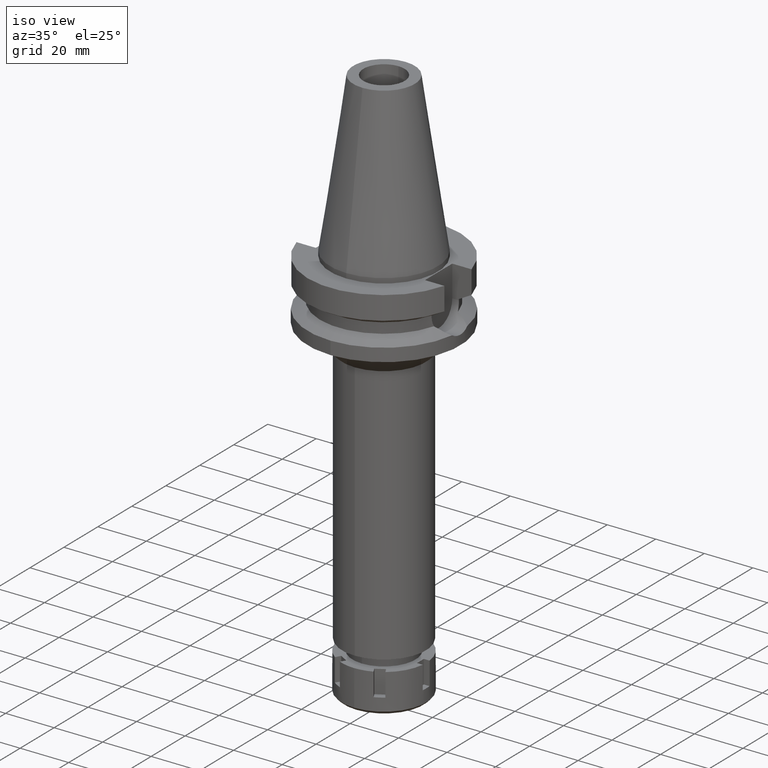
[diagram: clean part render]
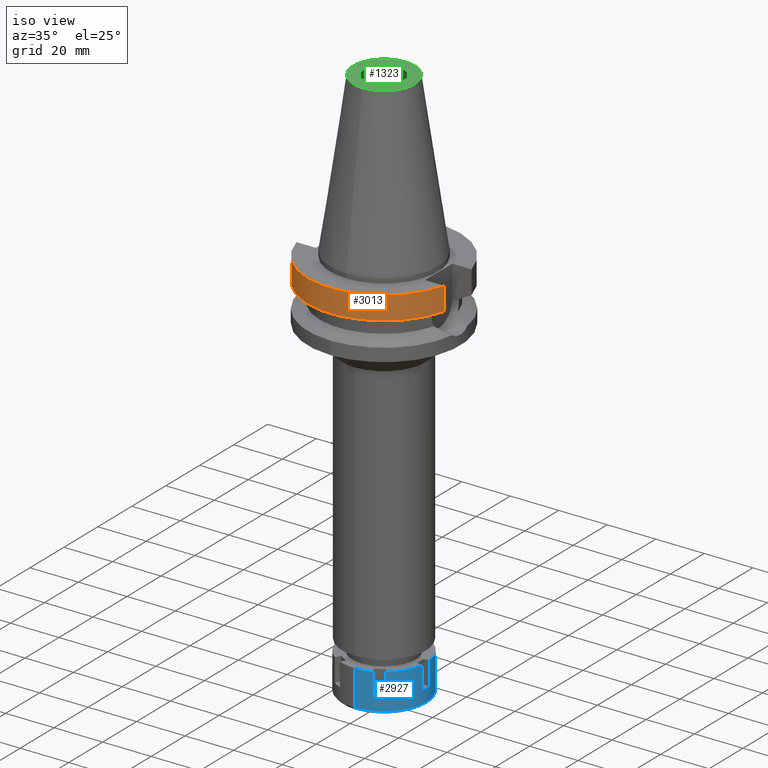
[diagram: same view with three faces highlighted in distinct colors, each labeled with its STEP entity id]
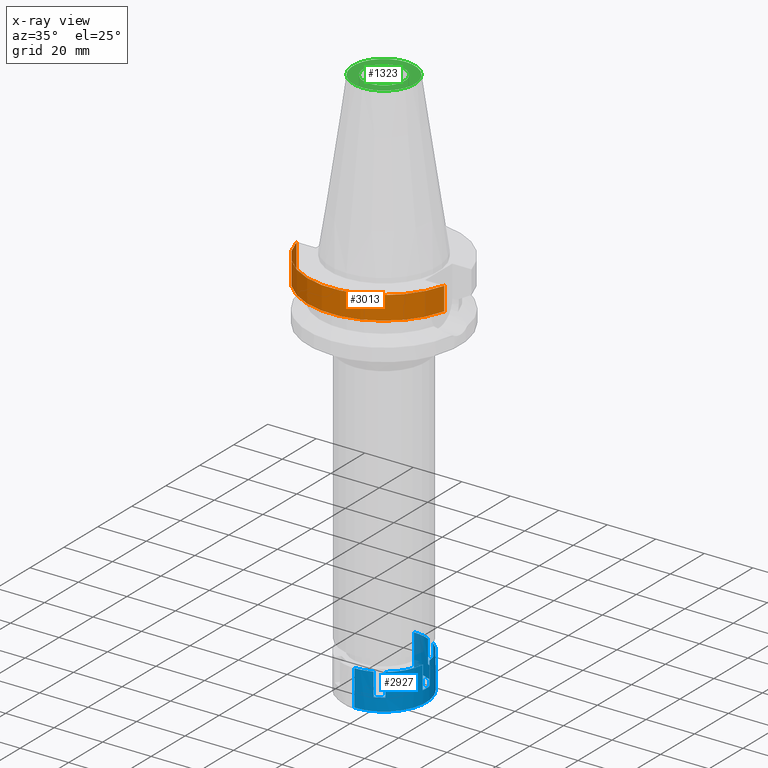
[diagram: x-ray of the same camera — body ghosted, the three highlighted faces saturated]
A machine part, iso view with three faces highlighted in distinct colors.
The next image is the same camera in x-ray (body ghosted, the three faces saturated) — at least one of them is partly hidden behind the body in this view.
Their STEP definitions:

[orange] entity #3013 — the highlighted cylindrical surface (partial cylindrical patch) has radius 31.5 mm, axis along (0, 0, -1).
#108 = DIRECTION ( 'NONE',  ( 0.0000000000000000000, 0.0000000000000000000, 1.000000000000000000 ) ) ;
#350 = CARTESIAN_POINT ( 'NONE',  ( 30.45402272279000044, -8.049999999999000622, -11.56550565266999975 ) ) ;
#458 = AXIS2_PLACEMENT_3D ( 'NONE', #3085, #566, #1695 ) ;
#566 = DIRECTION ( 'NONE',  ( 0.0000000000000000000, 0.0000000000000000000, -1.000000000000000000 ) ) ;
#634 = CIRCLE ( 'NONE', #458, 31.50000000000000000 ) ;
#748 = VERTEX_POINT ( 'NONE', #3248 ) ;
#749 = VECTOR ( 'NONE', #2125, 999.9999999999998863 ) ;
#1086 = CARTESIAN_POINT ( 'NONE',  ( 0.0000000000000000000, 2.161746529854999700E-14, 76.52000000000001023 ) ) ;
#1215 = LINE ( 'NONE', #3198, #749 ) ;
#1233 = DIRECTION ( 'NONE',  ( 0.0000000000000000000, -1.000000000000000000, 0.0000000000000000000 ) ) ;
#1429 = ORIENTED_EDGE ( 'NONE', *, *, #2875, .T. ) ;
#1506 = DIRECTION ( 'NONE',  ( 1.994621289529988906E-08, -7.545894673464957228E-08, 0.9999999999999968914 ) ) ;
#1579 = VERTEX_POINT ( 'NONE', #350 ) ;
#1630 = VERTEX_POINT ( 'NONE', #2096 ) ;
#1695 = DIRECTION ( 'NONE',  ( 0.0000000000000000000, -1.000000000000000000, 0.0000000000000000000 ) ) ;
#1842 = VERTEX_POINT ( 'NONE', #3545 ) ;
#1948 = ORIENTED_EDGE ( 'NONE', *, *, #3632, .F. ) ;
#2011 = AXIS2_PLACEMENT_3D ( 'NONE', #3410, #108, #1233 ) ;
#2054 = EDGE_CURVE ( 'NONE', #1630, #1579, #2821, .T. ) ;
#2096 = CARTESIAN_POINT ( 'NONE',  ( -30.45402291358000113, -8.049999278195999253, -11.56551215380000031 ) ) ;
#2121 = VECTOR ( 'NONE', #1506, 1000.000000000000227 ) ;
#2125 = DIRECTION ( 'NONE',  ( -1.145023312779999569E-07, -4.331741411846998158E-07, -0.9999999999998997469 ) ) ;
#2437 = LINE ( 'NONE', #3521, #2121 ) ;
#2486 = CYLINDRICAL_SURFACE ( 'NONE', #3642, 31.50000000000000000 ) ;
#2497 = ORIENTED_EDGE ( 'NONE', *, *, #2054, .T. ) ;
#2707 = FACE_OUTER_BOUND ( 'NONE', #2856, .T. ) ;
#2821 = CIRCLE ( 'NONE', #2011, 31.50000000000000000 ) ;
#2856 = EDGE_LOOP ( 'NONE', ( #1948, #2497, #3056, #1429 ) ) ;
#2875 = EDGE_CURVE ( 'NONE', #1842, #748, #634, .T. ) ;
#2896 = EDGE_CURVE ( 'NONE', #1842, #1579, #1215, .T. ) ;
#3013 = ADVANCED_FACE ( 'NONE', ( #2707 ), #2486, .T. ) ;
#3056 = ORIENTED_EDGE ( 'NONE', *, *, #2896, .F. ) ;
#3085 = CARTESIAN_POINT ( 'NONE',  ( 0.0000000000000000000, 2.161746529854999700E-14, -2.000000000000000000 ) ) ;
#3198 = CARTESIAN_POINT ( 'NONE',  ( 30.45402272279000044, -8.050000000000000711, -2.000000000000000000 ) ) ;
#3248 = CARTESIAN_POINT ( 'NONE',  ( -30.45402272279000044, -8.050000000000000711, -2.000000000000000000 ) ) ;
#3310 = DIRECTION ( 'NONE',  ( 0.0000000000000000000, 0.0000000000000000000, -1.000000000000000000 ) ) ;
#3410 = CARTESIAN_POINT ( 'NONE',  ( 0.0000000000000000000, 1.065333950388000029E-14, -11.56550565266999975 ) ) ;
#3521 = CARTESIAN_POINT ( 'NONE',  ( -30.45402291358000113, -8.049999278195999253, -11.56551215380000031 ) ) ;
#3545 = CARTESIAN_POINT ( 'NONE',  ( 30.45402272279000044, -8.050000000000000711, -2.000000000000000000 ) ) ;
#3598 = DIRECTION ( 'NONE',  ( 0.0000000000000000000, -1.000000000000000000, 0.0000000000000000000 ) ) ;
#3632 = EDGE_CURVE ( 'NONE', #1630, #748, #2437, .T. ) ;
#3642 = AXIS2_PLACEMENT_3D ( 'NONE', #1086, #3310, #3598 ) ;

[blue] entity #2927 — the highlighted cylindrical surface (partial cylindrical patch) has radius 17.5 mm, axis along (0, 0, -1).
#9 = CARTESIAN_POINT ( 'NONE',  ( 10.42472013293000010, -14.05614492490999901, -9.500000000000000000 ) ) ;
#29 = CIRCLE ( 'NONE', #3080, 17.50000000000000355 ) ;
#40 = CARTESIAN_POINT ( 'NONE',  ( 0.0000000000000000000, 0.0000000000000000000, -14.75000000000000000 ) ) ;
#67 = CARTESIAN_POINT ( 'NONE',  ( 10.42472013293000010, -14.05614492490999901, -9.500000000000000000 ) ) ;
#94 = EDGE_CURVE ( 'NONE', #920, #1374, #1140, .T. ) ;
#126 = CYLINDRICAL_SURFACE ( 'NONE', #3336, 17.50000000000000000 ) ;
#170 = CARTESIAN_POINT ( 'NONE',  ( 10.42472013293000010, 14.05614492490999901, 0.0000000000000000000 ) ) ;
#216 = CARTESIAN_POINT ( 'NONE',  ( 10.42472013293000010, -14.05614492490999901, 0.0000000000000000000 ) ) ;
#224 = VERTEX_POINT ( 'NONE', #2283 ) ;
#272 = VERTEX_POINT ( 'NONE', #333 ) ;
#283 = ORIENTED_EDGE ( 'NONE', *, *, #1015, .T. ) ;
#284 = EDGE_CURVE ( 'NONE', #1347, #1297, #2784, .T. ) ;
#304 = ORIENTED_EDGE ( 'NONE', *, *, #1658, .T. ) ;
#315 = ORIENTED_EDGE ( 'NONE', *, *, #515, .T. ) ;
#330 = EDGE_CURVE ( 'NONE', #1041, #920, #3186, .T. ) ;
#333 = CARTESIAN_POINT ( 'NONE',  ( 17.38533865071000051, 2.000000000000000000, 0.0000000000000000000 ) ) ;
#372 = CARTESIAN_POINT ( 'NONE',  ( 0.0000000000000000000, 0.0000000000000000000, 0.0000000000000000000 ) ) ;
#393 = DIRECTION ( 'NONE',  ( 0.3977496295877935850, -0.9174939957093850573, 0.0000000000000000000 ) ) ;
#439 = DIRECTION ( 'NONE',  ( 0.0000000000000000000, 0.0000000000000000000, -1.000000000000000000 ) ) ;
#492 = ORIENTED_EDGE ( 'NONE', *, *, #94, .T. ) ;
#502 = DIRECTION ( 'NONE',  ( 0.3977496295879985877, 0.9174939957092961285, 0.0000000000000000000 ) ) ;
#515 = EDGE_CURVE ( 'NONE', #1391, #1297, #1957, .T. ) ;
#516 = CARTESIAN_POINT ( 'NONE',  ( 6.960618517787000137, -16.05614492491000078, 0.0000000000000000000 ) ) ;
#591 = LINE ( 'NONE', #1184, #2056 ) ;
#633 = CARTESIAN_POINT ( 'NONE',  ( 0.0000000000000000000, 0.0000000000000000000, -9.500000000000000000 ) ) ;
#649 = AXIS2_PLACEMENT_3D ( 'NONE', #3435, #1206, #899 ) ;
#704 = VECTOR ( 'NONE', #3021, 1000.000000000000000 ) ;
#705 = CARTESIAN_POINT ( 'NONE',  ( 0.0000000000000000000, -17.50000000000000000, 0.0000000000000000000 ) ) ;
#727 = DIRECTION ( 'NONE',  ( 0.0000000000000000000, 0.0000000000000000000, -1.000000000000000000 ) ) ;
#734 = CARTESIAN_POINT ( 'NONE',  ( 17.38533865071000051, -2.000000000000000000, 0.0000000000000000000 ) ) ;
#736 = CARTESIAN_POINT ( 'NONE',  ( 17.38533865071000051, 2.000000000000000000, -9.500000000000000000 ) ) ;
#804 = EDGE_CURVE ( 'NONE', #1347, #272, #29, .T. ) ;
#858 = CARTESIAN_POINT ( 'NONE',  ( 0.0000000000000000000, 17.50000000000000000, -14.75000000000000000 ) ) ;
#863 = DIRECTION ( 'NONE',  ( 0.0000000000000000000, -1.000000000000000000, 0.0000000000000000000 ) ) ;
#891 = VECTOR ( 'NONE', #3340, 1000.000000000000000 ) ;
#899 = DIRECTION ( 'NONE',  ( 0.0000000000000000000, 1.000000000000000000, 0.0000000000000000000 ) ) ;
#909 = CARTESIAN_POINT ( 'NONE',  ( 6.960618517787000137, -16.05614492491000078, -9.500000000000000000 ) ) ;
#913 = CARTESIAN_POINT ( 'NONE',  ( 0.0000000000000000000, 0.0000000000000000000, -9.500000000000000000 ) ) ;
#920 = VERTEX_POINT ( 'NONE', #2951 ) ;
#925 = ORIENTED_EDGE ( 'NONE', *, *, #1967, .F. ) ;
#940 = CARTESIAN_POINT ( 'NONE',  ( 0.0000000000000000000, -17.50000000000000000, 0.0000000000000000000 ) ) ;
#959 = DIRECTION ( 'NONE',  ( 0.5956982933103188715, -0.8032082814234259294, 0.0000000000000000000 ) ) ;
#1003 = DIRECTION ( 'NONE',  ( 0.5956982933099820299, 0.8032082814236758406, 0.0000000000000000000 ) ) ;
#1015 = EDGE_CURVE ( 'NONE', #3348, #1041, #1266, .T. ) ;
#1041 = VERTEX_POINT ( 'NONE', #940 ) ;
#1044 = VECTOR ( 'NONE', #2758, 1000.000000000000000 ) ;
#1059 = ORIENTED_EDGE ( 'NONE', *, *, #284, .F. ) ;
#1072 = CARTESIAN_POINT ( 'NONE',  ( 6.960618517789000315, 16.05614492491000078, 0.0000000000000000000 ) ) ;
#1132 = EDGE_CURVE ( 'NONE', #2252, #3009, #2194, .T. ) ;
#1140 = CIRCLE ( 'NONE', #3129, 17.50000000000000000 ) ;
#1144 = CARTESIAN_POINT ( 'NONE',  ( 17.38533865071000051, 2.000000000000000000, -9.500000000000000000 ) ) ;
#1184 = CARTESIAN_POINT ( 'NONE',  ( 0.0000000000000000000, 17.50000000000000000, 0.0000000000000000000 ) ) ;
#1198 = DIRECTION ( 'NONE',  ( 0.0000000000000000000, 0.0000000000000000000, 1.000000000000000000 ) ) ;
#1206 = DIRECTION ( 'NONE',  ( 0.0000000000000000000, 0.0000000000000000000, -1.000000000000000000 ) ) ;
#1207 = DIRECTION ( 'NONE',  ( 0.0000000000000000000, 0.0000000000000000000, -1.000000000000000000 ) ) ;
#1217 = ORIENTED_EDGE ( 'NONE', *, *, #1132, .T. ) ;
#1266 = CIRCLE ( 'NONE', #3324, 17.49999999999999645 ) ;
#1274 = CARTESIAN_POINT ( 'NONE',  ( 6.960618517789000315, 16.05614492491000078, -9.500000000000000000 ) ) ;
#1286 = DIRECTION ( 'NONE',  ( 0.9934479228979277154, -0.1142857142857031660, 0.0000000000000000000 ) ) ;
#1297 = VERTEX_POINT ( 'NONE', #3587 ) ;
#1306 = AXIS2_PLACEMENT_3D ( 'NONE', #3022, #3568, #502 ) ;
#1331 = VERTEX_POINT ( 'NONE', #736 ) ;
#1347 = VERTEX_POINT ( 'NONE', #170 ) ;
#1374 = VERTEX_POINT ( 'NONE', #858 ) ;
#1384 = CARTESIAN_POINT ( 'NONE',  ( 10.42472013293000010, 14.05614492490999901, 0.0000000000000000000 ) ) ;
#1391 = VERTEX_POINT ( 'NONE', #1668 ) ;
#1417 = CARTESIAN_POINT ( 'NONE',  ( 17.38533865071000051, -2.000000000000000000, 0.0000000000000000000 ) ) ;
#1471 = CIRCLE ( 'NONE', #649, 17.50000000000000000 ) ;
#1498 = DIRECTION ( 'NONE',  ( 0.0000000000000000000, 0.0000000000000000000, -1.000000000000000000 ) ) ;
#1631 = EDGE_CURVE ( 'NONE', #224, #2620, #1471, .T. ) ;
#1652 = CIRCLE ( 'NONE', #2127, 17.50000000000000711 ) ;
#1658 = EDGE_CURVE ( 'NONE', #1331, #3307, #1652, .T. ) ;
#1668 = CARTESIAN_POINT ( 'NONE',  ( 6.960618517790000404, 16.05614492491000078, -9.500000000000000000 ) ) ;
#1701 = CIRCLE ( 'NONE', #3102, 17.50000000000000711 ) ;
#1720 = LINE ( 'NONE', #1417, #3168 ) ;
#1866 = VERTEX_POINT ( 'NONE', #734 ) ;
#1897 = EDGE_CURVE ( 'NONE', #1391, #2620, #1904, .T. ) ;
#1904 = LINE ( 'NONE', #1274, #704 ) ;
#1957 = CIRCLE ( 'NONE', #1306, 17.49999999999999645 ) ;
#1967 = EDGE_CURVE ( 'NONE', #1866, #3307, #1720, .T. ) ;
#2030 = VERTEX_POINT ( 'NONE', #216 ) ;
#2056 = VECTOR ( 'NONE', #3068, 1000.000000000000000 ) ;
#2101 = ORIENTED_EDGE ( 'NONE', *, *, #330, .T. ) ;
#2127 = AXIS2_PLACEMENT_3D ( 'NONE', #913, #3184, #2582 ) ;
#2194 = CIRCLE ( 'NONE', #3174, 17.50000000000000355 ) ;
#2252 = VERTEX_POINT ( 'NONE', #9 ) ;
#2257 = ORIENTED_EDGE ( 'NONE', *, *, #2802, .F. ) ;
#2283 = CARTESIAN_POINT ( 'NONE',  ( 0.0000000000000000000, 17.50000000000000000, 0.0000000000000000000 ) ) ;
#2384 = VECTOR ( 'NONE', #1207, 1000.000000000000000 ) ;
#2388 = CARTESIAN_POINT ( 'NONE',  ( 0.0000000000000000000, 0.0000000000000000000, 0.0000000000000000000 ) ) ;
#2424 = LINE ( 'NONE', #516, #1044 ) ;
#2467 = VECTOR ( 'NONE', #1198, 1000.000000000000000 ) ;
#2560 = LINE ( 'NONE', #67, #2467 ) ;
#2567 = DIRECTION ( 'NONE',  ( 0.0000000000000000000, 0.0000000000000000000, 1.000000000000000000 ) ) ;
#2582 = DIRECTION ( 'NONE',  ( 0.9934479228979277154, 0.1142857142857031660, 0.0000000000000000000 ) ) ;
#2586 = EDGE_CURVE ( 'NONE', #3348, #3009, #2424, .T. ) ;
#2609 = DIRECTION ( 'NONE',  ( 0.0000000000000000000, 0.0000000000000000000, 1.000000000000000000 ) ) ;
#2620 = VERTEX_POINT ( 'NONE', #1072 ) ;
#2683 = CARTESIAN_POINT ( 'NONE',  ( 0.0000000000000000000, 0.0000000000000000000, 0.0000000000000000000 ) ) ;
#2696 = ORIENTED_EDGE ( 'NONE', *, *, #3546, .T. ) ;
#2758 = DIRECTION ( 'NONE',  ( 0.0000000000000000000, 0.0000000000000000000, -1.000000000000000000 ) ) ;
#2770 = ORIENTED_EDGE ( 'NONE', *, *, #804, .T. ) ;
#2784 = LINE ( 'NONE', #1384, #891 ) ;
#2786 = ORIENTED_EDGE ( 'NONE', *, *, #3351, .F. ) ;
#2802 = EDGE_CURVE ( 'NONE', #224, #1374, #591, .T. ) ;
#2844 = LINE ( 'NONE', #1144, #2865 ) ;
#2865 = VECTOR ( 'NONE', #2609, 1000.000000000000000 ) ;
#2871 = DIRECTION ( 'NONE',  ( 0.0000000000000000000, 0.0000000000000000000, -1.000000000000000000 ) ) ;
#2927 = ADVANCED_FACE ( 'NONE', ( #3214 ), #126, .T. ) ;
#2951 = CARTESIAN_POINT ( 'NONE',  ( 0.0000000000000000000, -17.50000000000000000, -14.75000000000000000 ) ) ;
#3009 = VERTEX_POINT ( 'NONE', #909 ) ;
#3021 = DIRECTION ( 'NONE',  ( 0.0000000000000000000, 0.0000000000000000000, 1.000000000000000000 ) ) ;
#3022 = CARTESIAN_POINT ( 'NONE',  ( 0.0000000000000000000, 0.0000000000000000000, -9.500000000000000000 ) ) ;
#3068 = DIRECTION ( 'NONE',  ( 0.0000000000000000000, 0.0000000000000000000, -1.000000000000000000 ) ) ;
#3080 = AXIS2_PLACEMENT_3D ( 'NONE', #3538, #727, #1003 ) ;
#3086 = DIRECTION ( 'NONE',  ( 0.0000000000000000000, 0.0000000000000000000, -1.000000000000000000 ) ) ;
#3098 = CARTESIAN_POINT ( 'NONE',  ( 17.38533865071000051, -2.000000000000000000, -9.500000000000000000 ) ) ;
#3102 = AXIS2_PLACEMENT_3D ( 'NONE', #2683, #439, #1286 ) ;
#3129 = AXIS2_PLACEMENT_3D ( 'NONE', #40, #2567, #863 ) ;
#3168 = VECTOR ( 'NONE', #3086, 1000.000000000000000 ) ;
#3174 = AXIS2_PLACEMENT_3D ( 'NONE', #633, #2871, #959 ) ;
#3177 = DIRECTION ( 'NONE',  ( 0.0000000000000000000, 0.0000000000000000000, -1.000000000000000000 ) ) ;
#3184 = DIRECTION ( 'NONE',  ( 0.0000000000000000000, 0.0000000000000000000, -1.000000000000000000 ) ) ;
#3186 = LINE ( 'NONE', #705, #2384 ) ;
#3214 = FACE_OUTER_BOUND ( 'NONE', #3402, .T. ) ;
#3234 = DIRECTION ( 'NONE',  ( 0.0000000000000000000, -1.000000000000000000, 0.0000000000000000000 ) ) ;
#3307 = VERTEX_POINT ( 'NONE', #3098 ) ;
#3324 = AXIS2_PLACEMENT_3D ( 'NONE', #372, #1498, #393 ) ;
#3336 = AXIS2_PLACEMENT_3D ( 'NONE', #2388, #3177, #3234 ) ;
#3340 = DIRECTION ( 'NONE',  ( 0.0000000000000000000, -1.121909582779000024E-14, -1.000000000000000000 ) ) ;
#3348 = VERTEX_POINT ( 'NONE', #3441 ) ;
#3351 = EDGE_CURVE ( 'NONE', #1331, #272, #2844, .T. ) ;
#3367 = ORIENTED_EDGE ( 'NONE', *, *, #3480, .F. ) ;
#3402 = EDGE_LOOP ( 'NONE', ( #1059, #2770, #2786, #304, #925, #2696, #3367, #1217, #3540, #283, #2101, #492, #2257, #3452, #3572, #315 ) ) ;
#3435 = CARTESIAN_POINT ( 'NONE',  ( 0.0000000000000000000, 0.0000000000000000000, 0.0000000000000000000 ) ) ;
#3441 = CARTESIAN_POINT ( 'NONE',  ( 6.960618517787000137, -16.05614492491000078, 0.0000000000000000000 ) ) ;
#3452 = ORIENTED_EDGE ( 'NONE', *, *, #1631, .T. ) ;
#3480 = EDGE_CURVE ( 'NONE', #2252, #2030, #2560, .T. ) ;
#3538 = CARTESIAN_POINT ( 'NONE',  ( 0.0000000000000000000, 0.0000000000000000000, 0.0000000000000000000 ) ) ;
#3540 = ORIENTED_EDGE ( 'NONE', *, *, #2586, .F. ) ;
#3546 = EDGE_CURVE ( 'NONE', #1866, #2030, #1701, .T. ) ;
#3568 = DIRECTION ( 'NONE',  ( 0.0000000000000000000, 0.0000000000000000000, -1.000000000000000000 ) ) ;
#3572 = ORIENTED_EDGE ( 'NONE', *, *, #1897, .F. ) ;
#3587 = CARTESIAN_POINT ( 'NONE',  ( 10.42472013291999922, 14.05614492490999901, -9.500000000000000000 ) ) ;

[green] entity #1323 — the highlighted planar face has unit normal (0, 0, -1).
#161 = VERTEX_POINT ( 'NONE', #2025 ) ;
#402 = DIRECTION ( 'NONE',  ( 0.0000000000000000000, 0.0000000000000000000, 1.000000000000000000 ) ) ;
#486 = CARTESIAN_POINT ( 'NONE',  ( 0.0000000000000000000, 8.500000000000000000, 65.40000000000000568 ) ) ;
#488 = CARTESIAN_POINT ( 'NONE',  ( 0.0000000000000000000, -8.500000000000000000, 65.40000000000000568 ) ) ;
#548 = EDGE_CURVE ( 'NONE', #578, #161, #1985, .T. ) ;
#578 = VERTEX_POINT ( 'NONE', #719 ) ;
#631 = AXIS2_PLACEMENT_3D ( 'NONE', #1012, #2145, #3253 ) ;
#677 = CARTESIAN_POINT ( 'NONE',  ( 0.0000000000000000000, 2.161746529854999700E-14, 65.40000000000000568 ) ) ;
#706 = DIRECTION ( 'NONE',  ( 0.0000000000000000000, -1.000000000000000000, 0.0000000000000000000 ) ) ;
#719 = CARTESIAN_POINT ( 'NONE',  ( 0.0000000000000000000, -12.68766899429999917, 65.40000000000000568 ) ) ;
#789 = AXIS2_PLACEMENT_3D ( 'NONE', #677, #402, #1528 ) ;
#859 = EDGE_CURVE ( 'NONE', #1894, #1194, #2219, .T. ) ;
#1012 = CARTESIAN_POINT ( 'NONE',  ( 0.0000000000000000000, 1.625106302469000024E-14, 65.40000000000000568 ) ) ;
#1076 = FACE_BOUND ( 'NONE', #2385, .T. ) ;
#1096 = ORIENTED_EDGE ( 'NONE', *, *, #3631, .F. ) ;
#1176 = CIRCLE ( 'NONE', #2754, 8.500000000000000000 ) ;
#1194 = VERTEX_POINT ( 'NONE', #488 ) ;
#1323 = ADVANCED_FACE ( 'NONE', ( #1849, #1076 ), #2207, .F. ) ;
#1485 = ORIENTED_EDGE ( 'NONE', *, *, #548, .F. ) ;
#1528 = DIRECTION ( 'NONE',  ( 0.0000000000000000000, 1.000000000000000000, 0.0000000000000000000 ) ) ;
#1849 = FACE_OUTER_BOUND ( 'NONE', #3560, .T. ) ;
#1886 = CARTESIAN_POINT ( 'NONE',  ( 0.0000000000000000000, 1.625106302469000024E-14, 65.40000000000000568 ) ) ;
#1894 = VERTEX_POINT ( 'NONE', #486 ) ;
#1985 = CIRCLE ( 'NONE', #2508, 12.68766899429999917 ) ;
#2025 = CARTESIAN_POINT ( 'NONE',  ( 0.0000000000000000000, 12.68766899429999917, 65.40000000000000568 ) ) ;
#2043 = ORIENTED_EDGE ( 'NONE', *, *, #859, .F. ) ;
#2083 = ORIENTED_EDGE ( 'NONE', *, *, #2665, .F. ) ;
#2145 = DIRECTION ( 'NONE',  ( 0.0000000000000000000, 0.0000000000000000000, -1.000000000000000000 ) ) ;
#2155 = DIRECTION ( 'NONE',  ( 0.0000000000000000000, -1.000000000000000000, 0.0000000000000000000 ) ) ;
#2207 = PLANE ( 'NONE',  #3240 ) ;
#2219 = CIRCLE ( 'NONE', #789, 8.500000000000000000 ) ;
#2385 = EDGE_LOOP ( 'NONE', ( #2043, #1096 ) ) ;
#2400 = DIRECTION ( 'NONE',  ( 0.0000000000000000000, 0.0000000000000000000, 1.000000000000000000 ) ) ;
#2448 = DIRECTION ( 'NONE',  ( 0.0000000000000000000, 0.0000000000000000000, -1.000000000000000000 ) ) ;
#2508 = AXIS2_PLACEMENT_3D ( 'NONE', #1886, #3006, #3586 ) ;
#2665 = EDGE_CURVE ( 'NONE', #161, #578, #3094, .T. ) ;
#2693 = CARTESIAN_POINT ( 'NONE',  ( 0.0000000000000000000, 2.025565805790000122E-14, 65.40000000000000568 ) ) ;
#2754 = AXIS2_PLACEMENT_3D ( 'NONE', #3231, #2400, #2155 ) ;
#3006 = DIRECTION ( 'NONE',  ( 0.0000000000000000000, 0.0000000000000000000, -1.000000000000000000 ) ) ;
#3094 = CIRCLE ( 'NONE', #631, 12.68766899429999917 ) ;
#3231 = CARTESIAN_POINT ( 'NONE',  ( 0.0000000000000000000, 2.161746529854999700E-14, 65.40000000000000568 ) ) ;
#3240 = AXIS2_PLACEMENT_3D ( 'NONE', #2693, #2448, #706 ) ;
#3253 = DIRECTION ( 'NONE',  ( 0.0000000000000000000, 1.000000000000000000, 0.0000000000000000000 ) ) ;
#3560 = EDGE_LOOP ( 'NONE', ( #2083, #1485 ) ) ;
#3586 = DIRECTION ( 'NONE',  ( 0.0000000000000000000, -1.000000000000000000, 0.0000000000000000000 ) ) ;
#3631 = EDGE_CURVE ( 'NONE', #1194, #1894, #1176, .T. ) ;